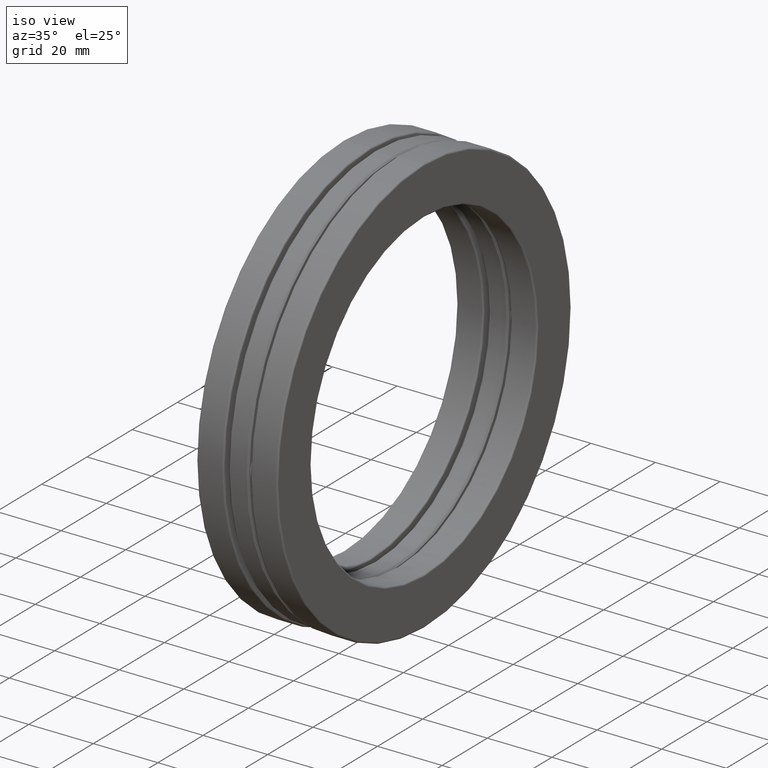
[diagram: clean part render]
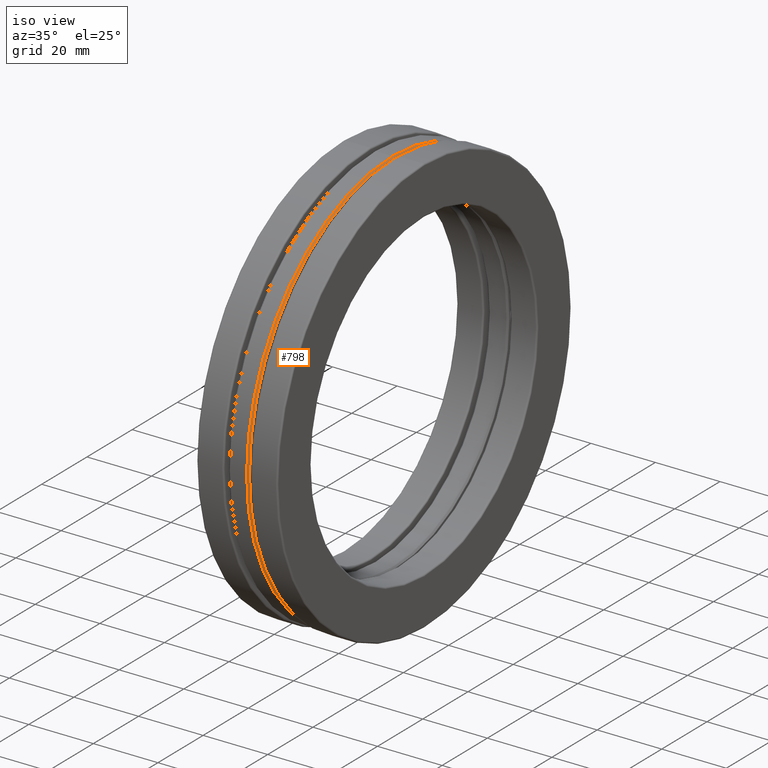
[diagram: same view with one face highlighted and labeled with its STEP entity id]
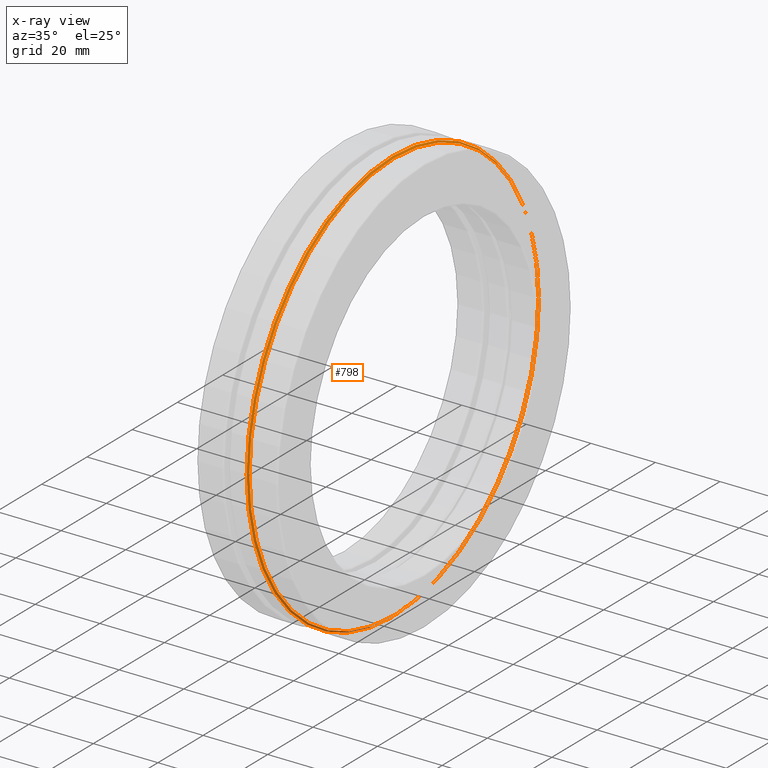
[diagram: x-ray of the same camera — body ghosted, the highlighted face saturated]
A machine part, iso view. The second image highlights one B-rep face of the part: STEP entity #798.
The next image is the same camera in x-ray: the body ghosted, the highlighted face saturated — about 4% of this face is hidden behind the body in this view.
In plain terms, the highlighted conical surface has half-angle 45 deg.
Its self-contained STEP definition (entity closure, byte-faithful):
#28 = DIRECTION ( 'NONE',  ( 0.0000000000000000000, 0.0000000000000000000, 1.000000000000000000 ) ) ;
#56 = DIRECTION ( 'NONE',  ( -1.000000000000000000, -0.0000000000000000000, -0.0000000000000000000 ) ) ;
#57 = EDGE_CURVE ( 'NONE', #381, #381, #739, .T. ) ;
#58 = CARTESIAN_POINT ( 'NONE',  ( 0.1029999999999999400, 0.0000000000000000000, 2.539000000000001000 ) ) ;
#60 = ORIENTED_EDGE ( 'NONE', *, *, #57, .T. ) ;
#79 = ORIENTED_EDGE ( 'NONE', *, *, #332, .F. ) ;
#212 = EDGE_LOOP ( 'NONE', ( #79 ) ) ;
#253 = CIRCLE ( 'NONE', #724, 2.539000000000001000 ) ;
#299 = CARTESIAN_POINT ( 'NONE',  ( 0.1229999999999999400, 0.0000000000000000000, 2.519000000000001000 ) ) ;
#305 = CARTESIAN_POINT ( 'NONE',  ( 0.1029999999999999400, 0.0000000000000000000, 0.0000000000000000000 ) ) ;
#332 = EDGE_CURVE ( 'NONE', #680, #680, #253, .T. ) ;
#336 = CARTESIAN_POINT ( 'NONE',  ( 0.1029999999999999400, 0.0000000000000000000, 0.0000000000000000000 ) ) ;
#381 = VERTEX_POINT ( 'NONE', #299 ) ;
#402 = AXIS2_PLACEMENT_3D ( 'NONE', #697, #571, #568 ) ;
#453 = DIRECTION ( 'NONE',  ( -1.000000000000000000, -0.0000000000000000000, -0.0000000000000000000 ) ) ;
#548 = DIRECTION ( 'NONE',  ( 0.0000000000000000000, 0.0000000000000000000, 1.000000000000000000 ) ) ;
#568 = DIRECTION ( 'NONE',  ( 0.0000000000000000000, 0.0000000000000000000, 1.000000000000000000 ) ) ;
#571 = DIRECTION ( 'NONE',  ( -1.000000000000000000, -0.0000000000000000000, -0.0000000000000000000 ) ) ;
#579 = CONICAL_SURFACE ( 'NONE', #605, 2.539000000000001000, 0.7853981633974427300 ) ;
#595 = FACE_BOUND ( 'NONE', #687, .T. ) ;
#605 = AXIS2_PLACEMENT_3D ( 'NONE', #305, #56, #548 ) ;
#630 = FACE_OUTER_BOUND ( 'NONE', #212, .T. ) ;
#680 = VERTEX_POINT ( 'NONE', #58 ) ;
#687 = EDGE_LOOP ( 'NONE', ( #60 ) ) ;
#697 = CARTESIAN_POINT ( 'NONE',  ( 0.1229999999999999400, 0.0000000000000000000, 0.0000000000000000000 ) ) ;
#724 = AXIS2_PLACEMENT_3D ( 'NONE', #336, #453, #28 ) ;
#739 = CIRCLE ( 'NONE', #402, 2.519000000000001000 ) ;
#798 = ADVANCED_FACE ( 'NONE', ( #595, #630 ), #579, .T. ) ;